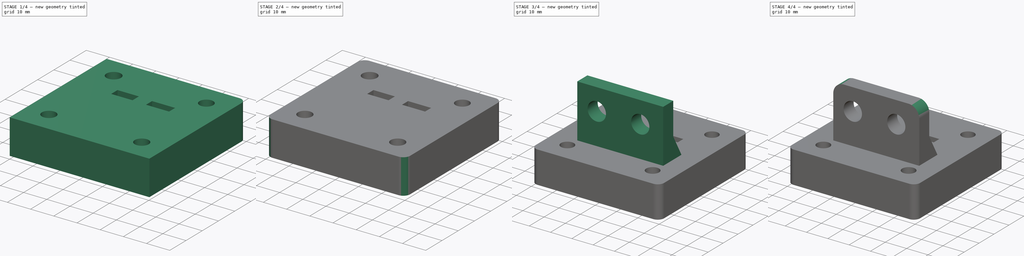
[diagram: build sequence overview — one tinted view per stage of 4, left to right]
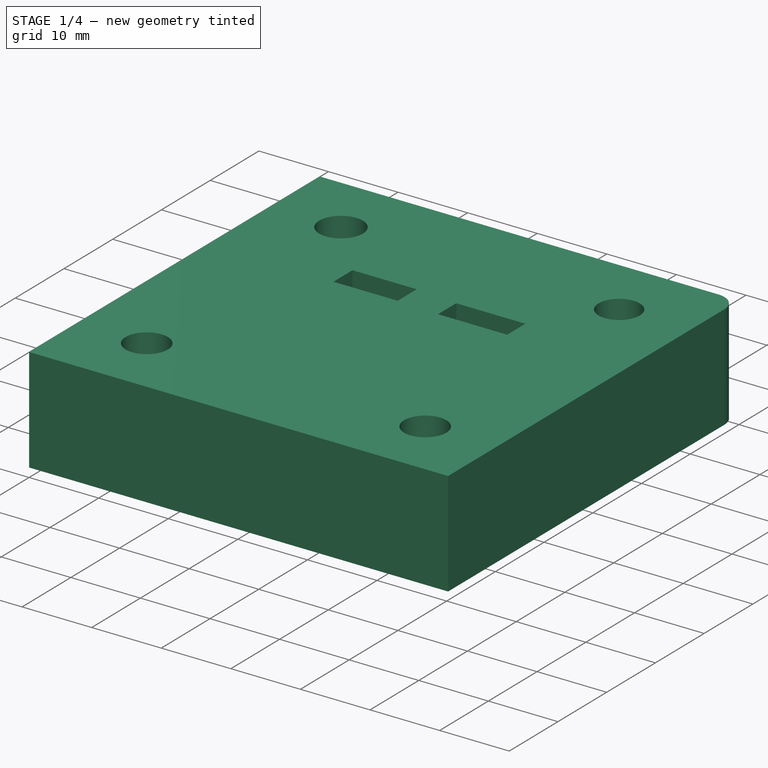
[diagram: stage 1 of 4 — iso view after this stage's code; geometry added in this stage tinted green]
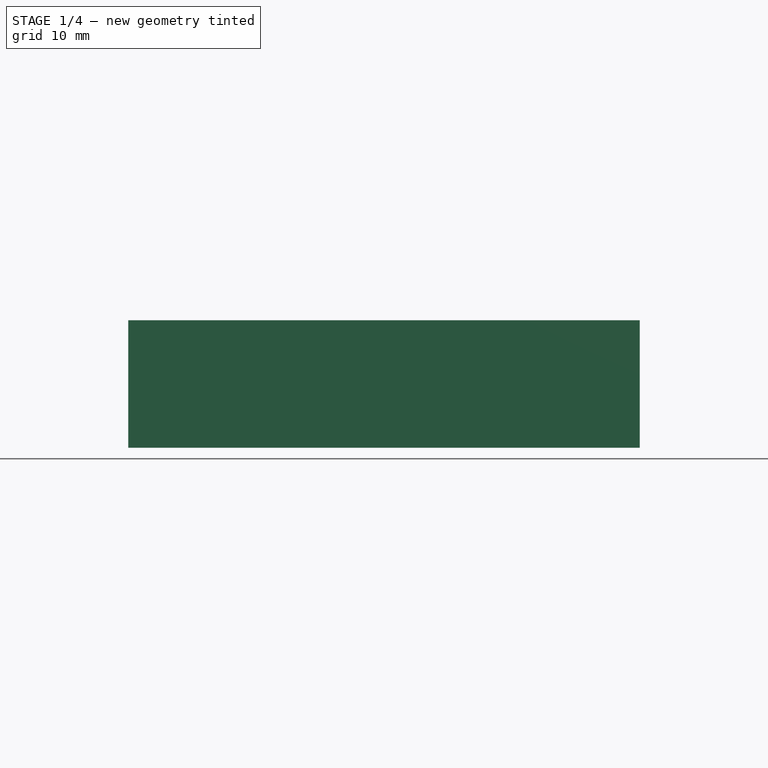
[diagram: stage 1 of 4 — front view after this stage's code; geometry added in this stage tinted green]
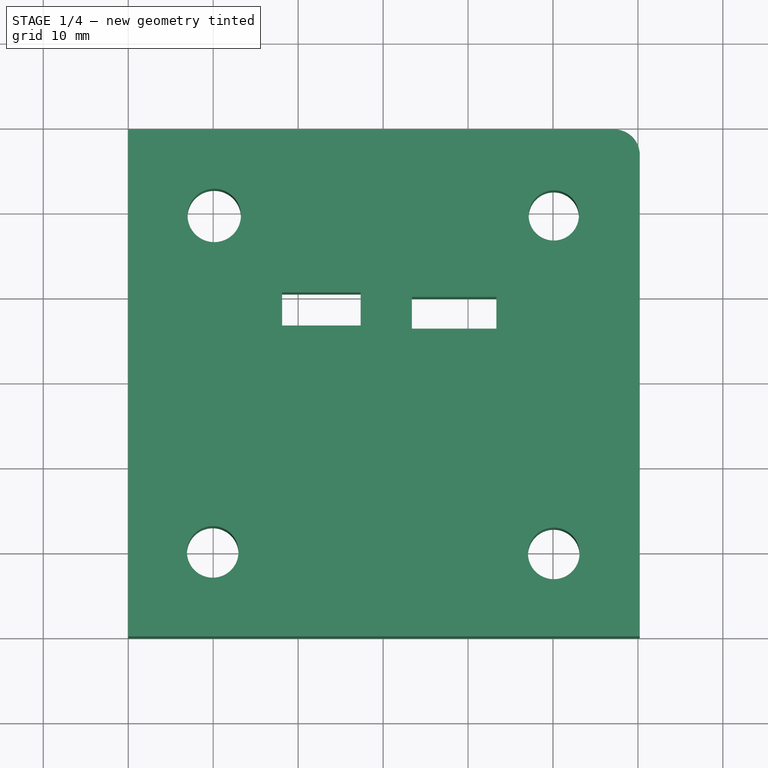
[diagram: stage 1 of 4 — top view after this stage's code; geometry added in this stage tinted green]
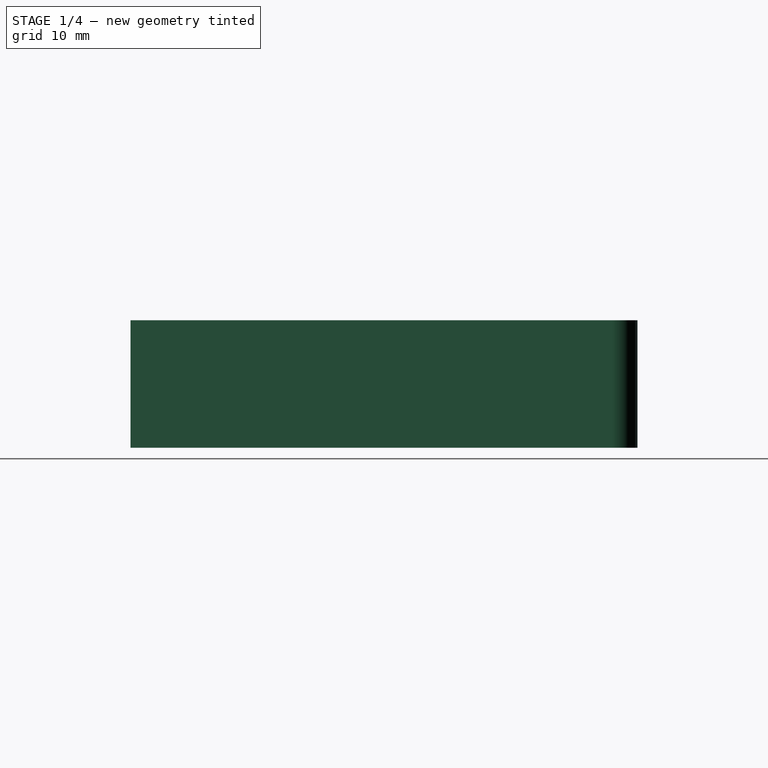
[diagram: stage 1 of 4 — right view after this stage's code; geometry added in this stage tinted green]
FCSTD DOCUMENT  (FreeCAD 0.16R6712 (Git))
Label: Perfil - Cara 1
License: All rights reserved
LicenseURL: http://en.wikipedia.org/wiki/All_rights_reserved
objects: PartDesign::Fillet×6, Sketcher::SketchObject×5, PartDesign::Pad×2, PartDesign::Pocket×2
note: 19 computed .brp shape members not serialized (recipe doc carries the construction recipe); baked Part::Feature solids carry a one-line shape summary decoded from their .brp

FEATURE [Sketcher::SketchObject] Sketch
  sketch-geometry (16):
    g0: LineSegment StartX=0 StartY=0 StartZ=0 EndX=60.2145 EndY=0 EndZ=0
    g1: LineSegment StartX=60.2145 StartY=0 StartZ=0 EndX=60.2145 EndY=59.6816 EndZ=0
    g2: LineSegment StartX=60.2145 StartY=59.6816 StartZ=0 EndX=0 EndY=59.6816 EndZ=0
    g3: LineSegment StartX=0 StartY=59.6816 StartZ=0 EndX=0 EndY=0 EndZ=0
    g4: Circle CenterX=10.1246 CenterY=49.557 CenterZ=0 NormalX=0 NormalY=0 NormalZ=1 Radius=3.14249
    g5: Circle CenterX=50.0899 CenterY=49.557 CenterZ=0 NormalX=0 NormalY=0 NormalZ=1 Radius=2.95623
    g6: Circle CenterX=9.94694 CenterY=9.94693 CenterZ=0 NormalX=0 NormalY=0 NormalZ=1 Radius=3.03523
    g7: Circle CenterX=50.0899 CenterY=9.76931 CenterZ=0 NormalX=0 NormalY=0 NormalZ=1 Radius=3.03523
    g8: LineSegment StartX=18.1176 StartY=40.4982 StartZ=0 EndX=27.3541 EndY=40.4982 EndZ=0
    g9: LineSegment StartX=27.3541 StartY=40.4982 StartZ=0 EndX=27.3541 EndY=36.5905 EndZ=0
    g10: LineSegment StartX=27.3541 StartY=36.5905 StartZ=0 EndX=18.1176 EndY=36.5905 EndZ=0
    g11: LineSegment StartX=18.1176 StartY=36.5905 StartZ=0 EndX=18.1176 EndY=40.4982 EndZ=0
    g12: LineSegment StartX=43.3402 StartY=39.9654 StartZ=0 EndX=33.3933 EndY=39.9654 EndZ=0
    g13: LineSegment StartX=33.3933 StartY=39.9654 StartZ=0 EndX=33.3933 EndY=36.2353 EndZ=0
    g14: LineSegment StartX=33.3933 StartY=36.2353 StartZ=0 EndX=43.3402 EndY=36.2353 EndZ=0
    g15: LineSegment StartX=43.3402 StartY=36.2353 StartZ=0 EndX=43.3402 EndY=39.9654 EndZ=0
  constraints (24):
    c: Coincident(g0,g1)
    c: Coincident(g1,g2)
    c: Coincident(g2,g3)
    c: Coincident(g3,g0)
    c: Horizontal(g0)
    c: Horizontal(g2)
    c: Vertical(g1)
    c: Vertical(g3)
    c: Coincident(g8,g9)
    c: Coincident(g9,g10)
    c: Coincident(g10,g11)
    c: Coincident(g11,g8)
    c: Horizontal(g8)
    c: Horizontal(g10)
    c: Vertical(g9)
    c: Vertical(g11)
    c: Coincident(g12,g13)
    c: Coincident(g13,g14)
    c: Coincident(g14,g15)
    c: Coincident(g15,g12)
    c: Horizontal(g12)
    c: Horizontal(g14)
    c: Vertical(g13)
    c: Vertical(g15)
FEATURE [PartDesign::Pad] Pad
  Length = 15
  Length2 = 100
  Sketch = -> Sketch
  Type = 0
FEATURE [PartDesign::Fillet] Fillet002
  Base = -> Pad [Edge5]
  Radius = 3
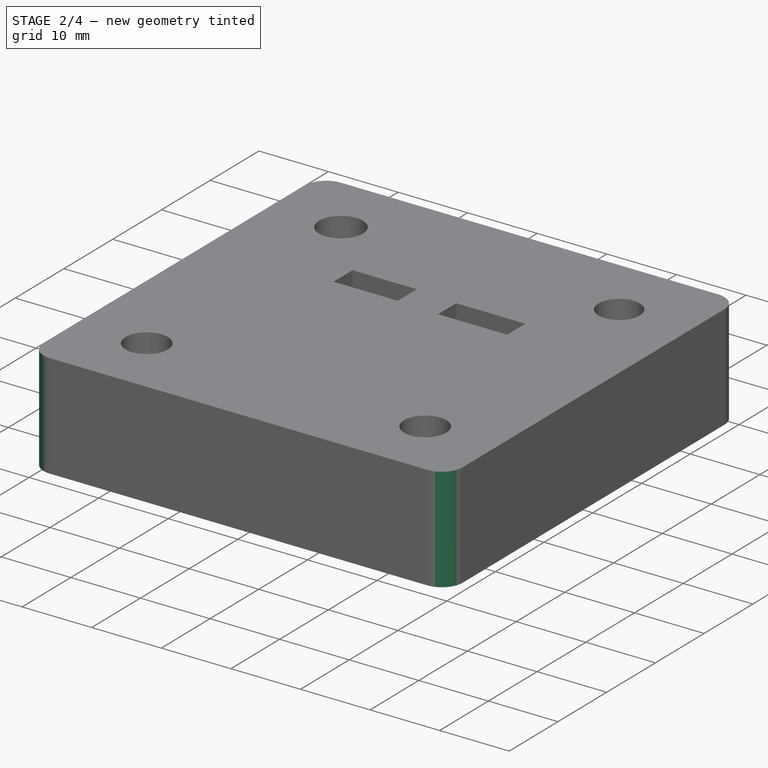
[diagram: stage 2 of 4 — iso view after this stage's code; geometry added in this stage tinted green]
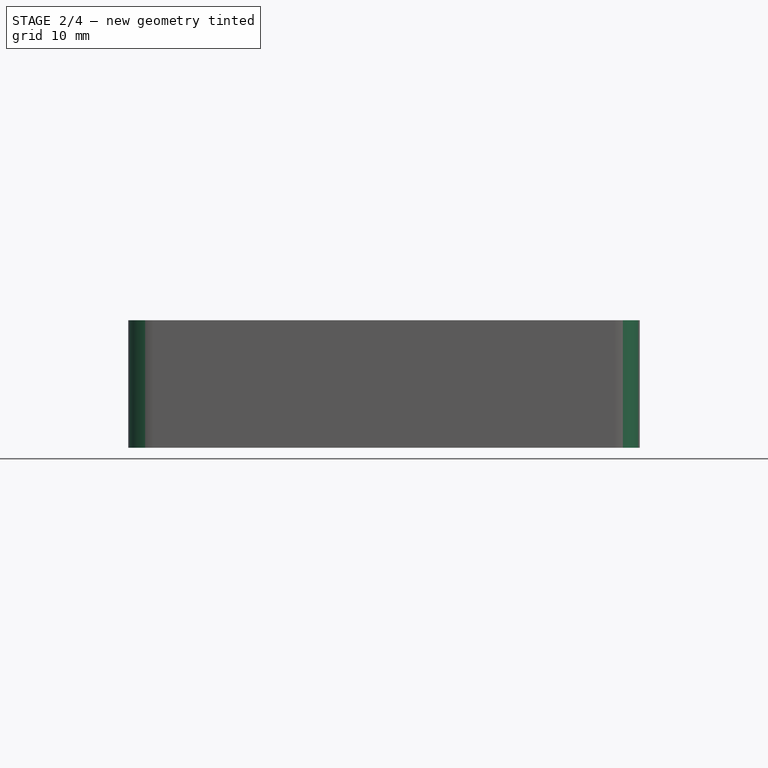
[diagram: stage 2 of 4 — front view after this stage's code; geometry added in this stage tinted green]
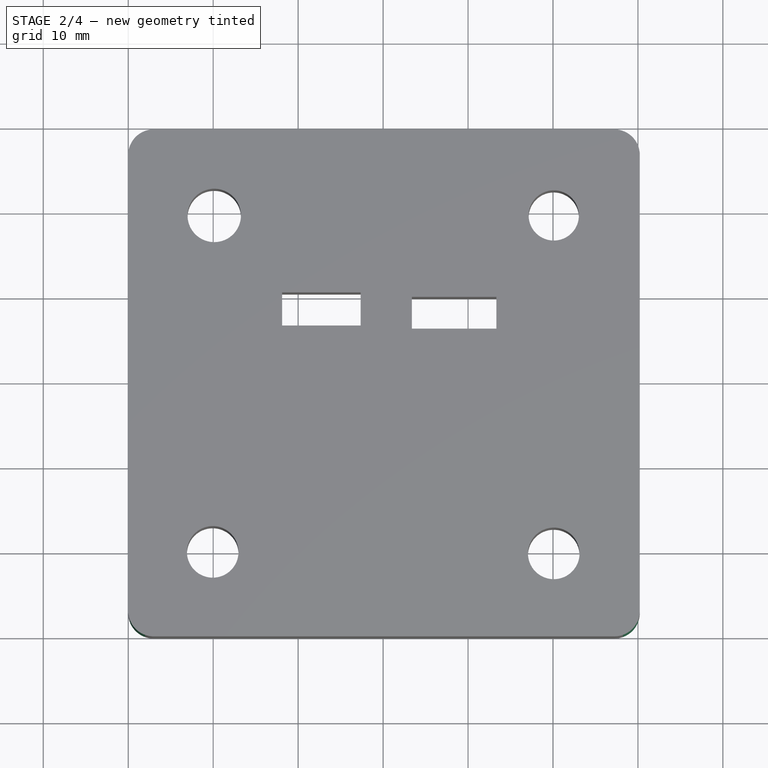
[diagram: stage 2 of 4 — top view after this stage's code; geometry added in this stage tinted green]
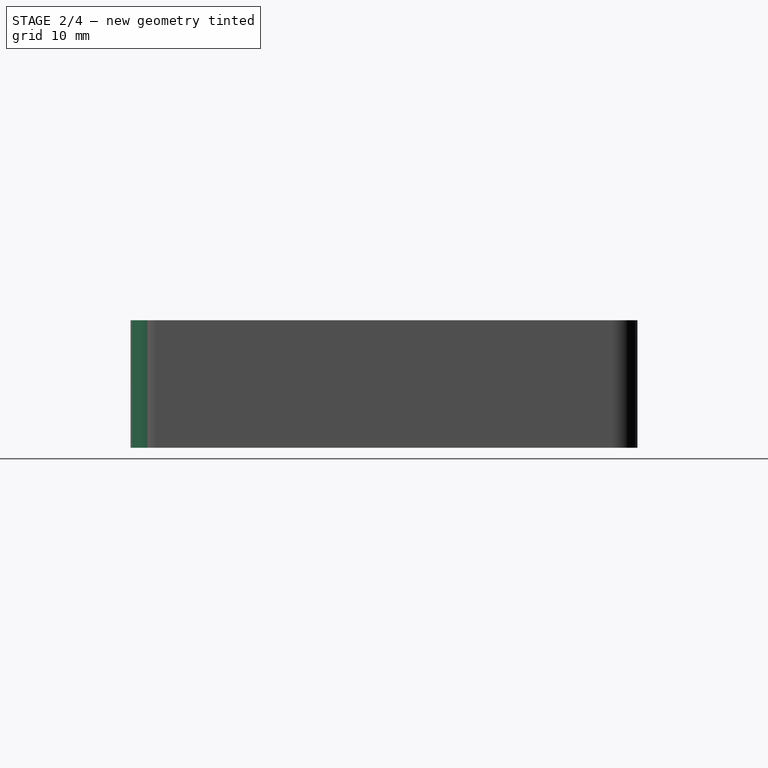
[diagram: stage 2 of 4 — right view after this stage's code; geometry added in this stage tinted green]
FEATURE [PartDesign::Fillet] Fillet003
  Base = -> Fillet002 [Edge3]
  Radius = 3
FEATURE [PartDesign::Fillet] Fillet004
  Base = -> Fillet003 [Edge41]
  Radius = 3
FEATURE [PartDesign::Fillet] Fillet005
  Base = -> Fillet004 [Edge27]
  Radius = 3
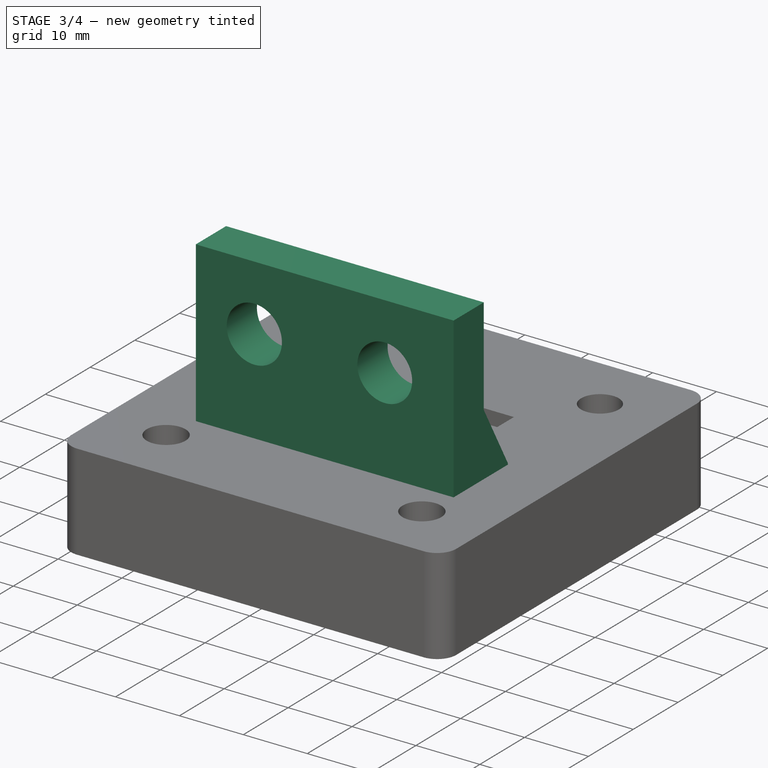
[diagram: stage 3 of 4 — iso view after this stage's code; geometry added in this stage tinted green]
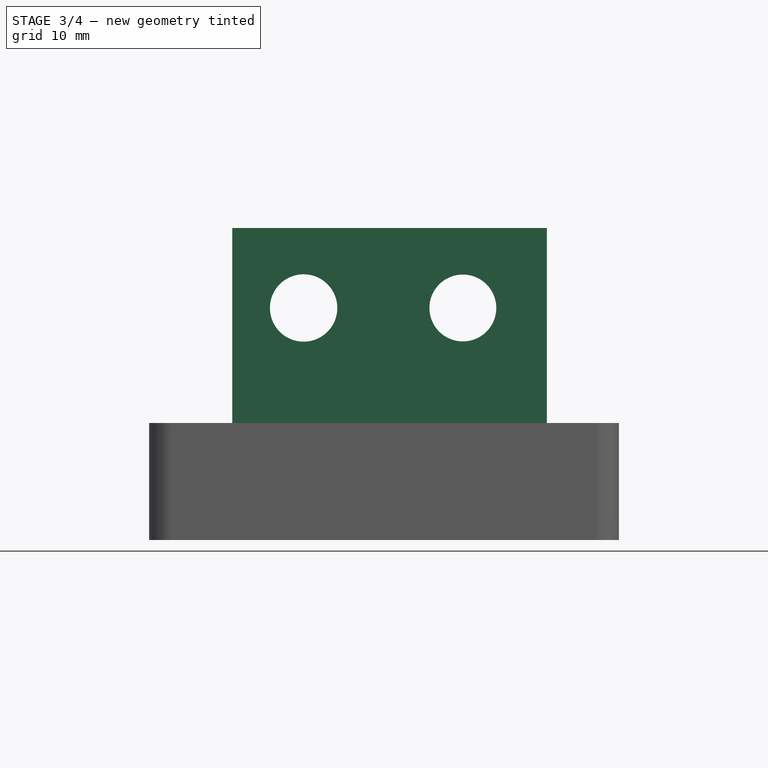
[diagram: stage 3 of 4 — front view after this stage's code; geometry added in this stage tinted green]
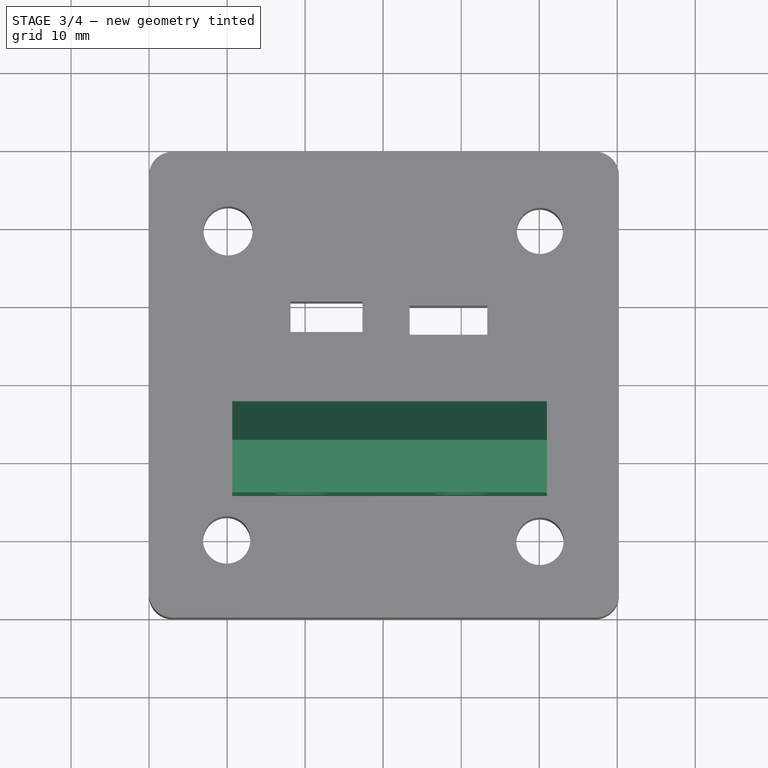
[diagram: stage 3 of 4 — top view after this stage's code; geometry added in this stage tinted green]
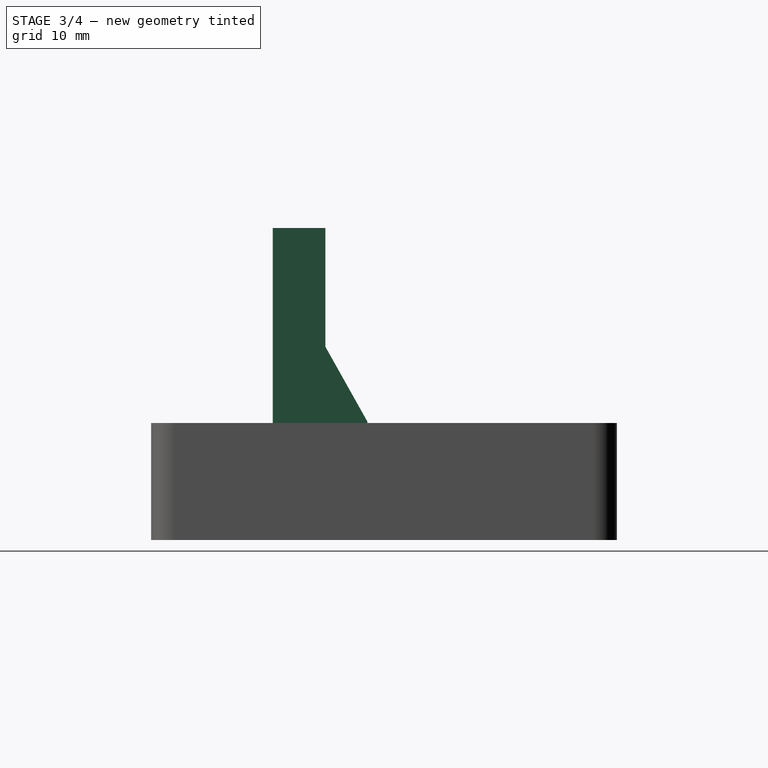
[diagram: stage 3 of 4 — right view after this stage's code; geometry added in this stage tinted green]
FEATURE [Sketcher::SketchObject] Sketch001
  sketch-geometry (4):
    g0: LineSegment StartX=10.6618 StartY=15.5766 StartZ=0 EndX=50.9824 EndY=15.5766 EndZ=0
    g1: LineSegment StartX=50.9824 StartY=15.5766 StartZ=0 EndX=50.9824 EndY=27.7093 EndZ=0
    g2: LineSegment StartX=50.9824 StartY=27.7093 StartZ=0 EndX=10.6618 EndY=27.7093 EndZ=0
    g3: LineSegment StartX=10.6618 StartY=27.7093 StartZ=0 EndX=10.6618 EndY=15.5766 EndZ=0
  constraints (8):
    c: Coincident(g0,g1)
    c: Coincident(g1,g2)
    c: Coincident(g2,g3)
    c: Coincident(g3,g0)
    c: Horizontal(g0)
    c: Horizontal(g2)
    c: Vertical(g1)
    c: Vertical(g3)
FEATURE [PartDesign::Pad] Pad001
  Length = 40
  Length2 = 100
  Sketch = -> Sketch001
  Type = 0
FEATURE [Sketcher::SketchObject] Sketch002
  Placement = pos=(0,15.5766,0) rot=(1,0,0;1.5708rad)
  Support = -> Pad001 [Face1]
  sketch-geometry (2):
    g0: Circle CenterX=19.8042 CenterY=29.7427 CenterZ=0 NormalX=0 NormalY=0 NormalZ=1 Radius=4.31762
    g1: Circle CenterX=40.2137 CenterY=29.7427 CenterZ=0 NormalX=0 NormalY=0 NormalZ=1 Radius=4.28441
FEATURE [PartDesign::Pocket] Pocket
  Length = 20
  Sketch = -> Sketch002
  Type = 0
FEATURE [Sketcher::SketchObject] Sketch003
  Placement = pos=(50.9824,0,0) rot=(0.57735,0.57735,0.57735;2.0944rad)
  Support = -> Pocket [Face5]
  sketch-geometry (2):
    g0: LineSegment StartX=27.7986 StartY=29.4213 StartZ=0 EndX=27.7986 EndY=14.4921 EndZ=0
    g1: LineSegment StartX=40.2711 StartY=14.4921 StartZ=0 EndX=27.7986 EndY=14.4921 EndZ=0
  constraints (3):
    c: Vertical(g0)
    c: Coincident(g1,g0)
    c: Horizontal(g1)
FEATURE [Sketcher::SketchObject] Sketch004
  Placement = pos=(50.9824,0,0) rot=(0.57735,0.57735,0.57735;2.0944rad)
  Support = -> Pocket [Face5]
  sketch-geometry (4):
    g0: LineSegment StartX=28.077 StartY=14.5368 StartZ=0 EndX=22.3236 EndY=24.7851 EndZ=0
    g1: LineSegment StartX=22.3236 StartY=24.7851 StartZ=0 EndX=22.3236 EndY=47.2594 EndZ=0
    g2: LineSegment StartX=22.3236 StartY=47.2594 StartZ=0 EndX=55.7654 EndY=45.2816 EndZ=0
    g3: LineSegment StartX=55.7654 StartY=45.2816 StartZ=0 EndX=28.077 EndY=14.5368 EndZ=0
  constraints (5):
    c: Coincident(g1,g0)
    c: Vertical(g1)
    c: Coincident(g2,g1)
    c: Coincident(g3,g2)
    c: Coincident(g3,g0)
FEATURE [PartDesign::Pocket] Pocket001
  Length = 50
  Sketch = -> Sketch004
  Type = 0
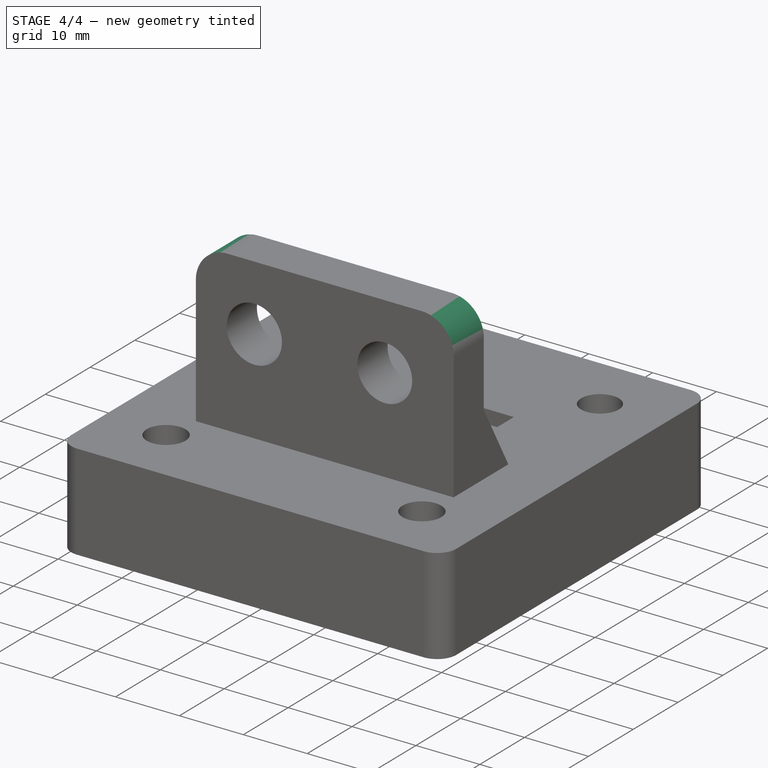
[diagram: stage 4 of 4 — iso view after this stage's code; geometry added in this stage tinted green]
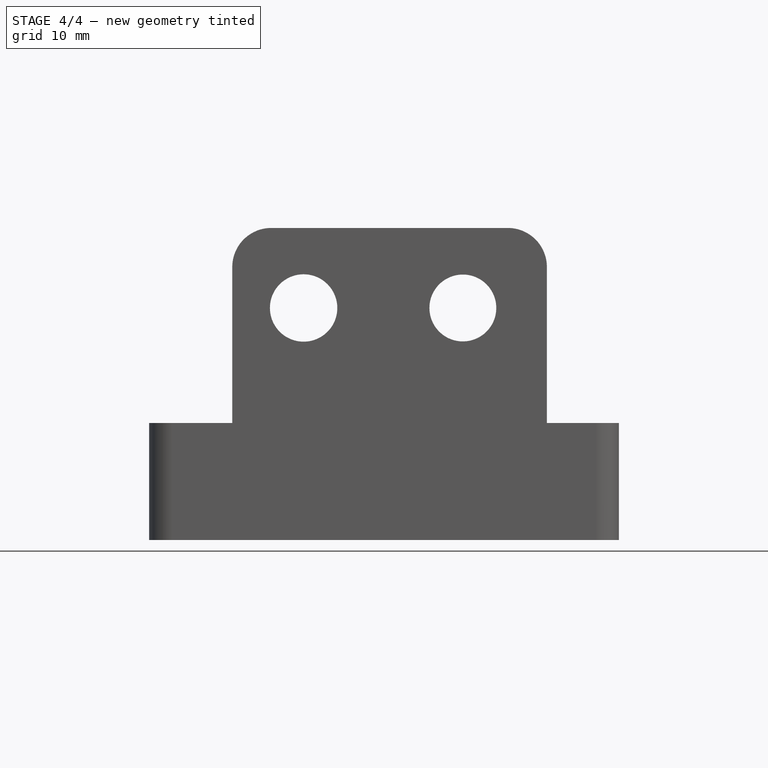
[diagram: stage 4 of 4 — front view after this stage's code; geometry added in this stage tinted green]
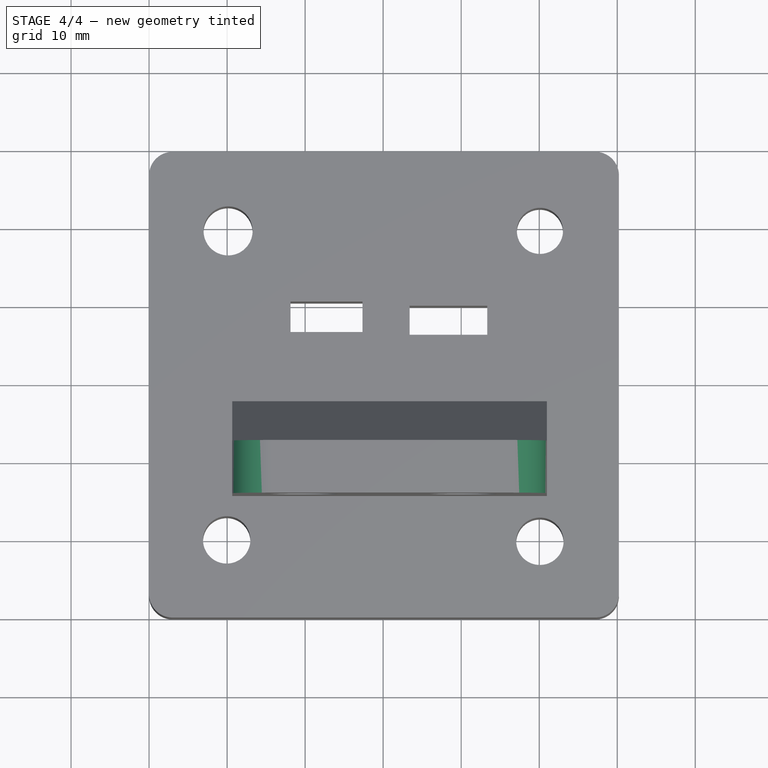
[diagram: stage 4 of 4 — top view after this stage's code; geometry added in this stage tinted green]
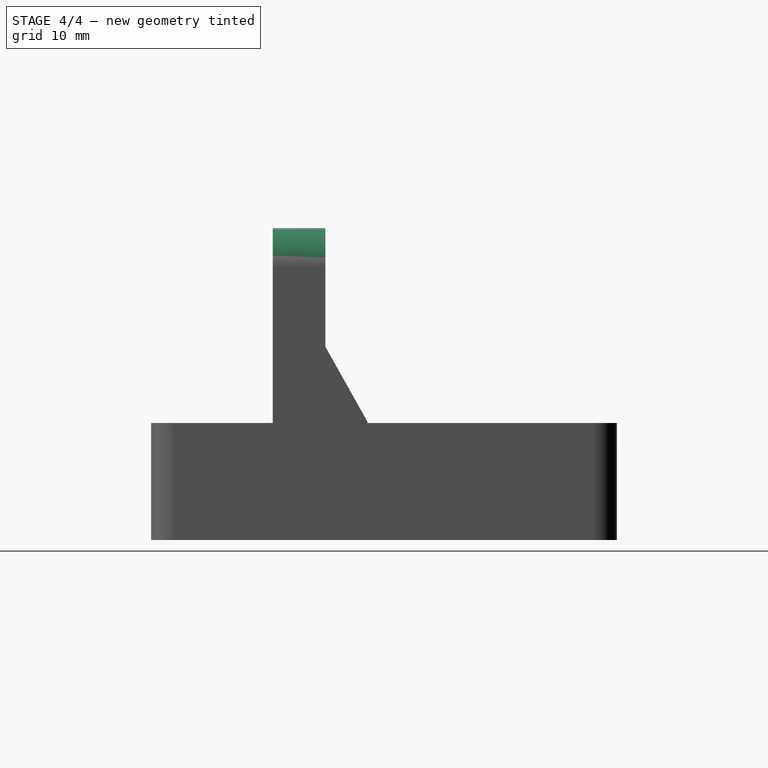
[diagram: stage 4 of 4 — right view after this stage's code; geometry added in this stage tinted green]
FEATURE [PartDesign::Fillet] Fillet
  Base = -> Pocket001 [Edge14]
  Radius = 5
FEATURE [PartDesign::Fillet] Fillet001
  Base = -> Fillet [Edge9]
  Radius = 5
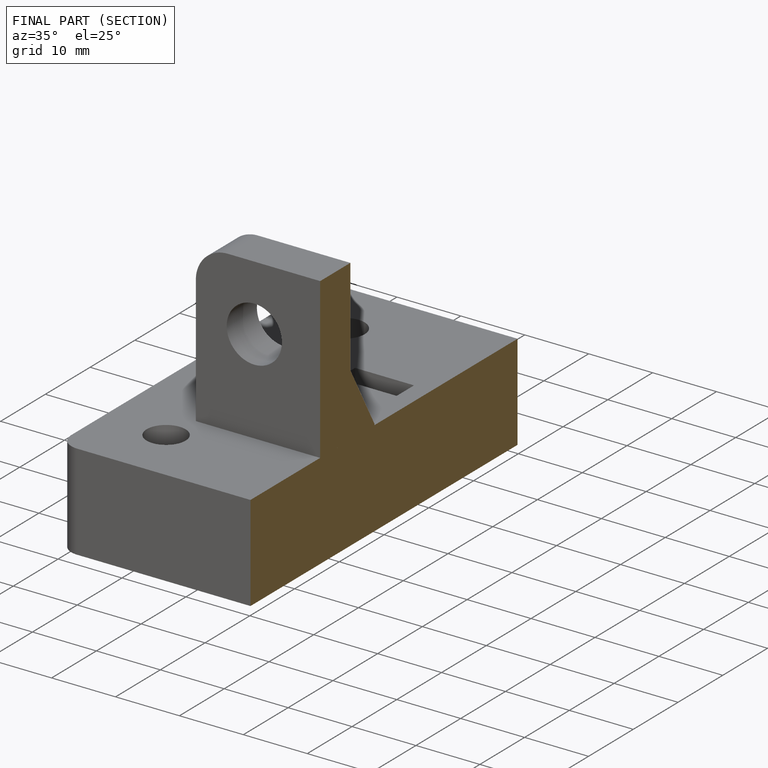
[diagram: finished part — half-section view (interior)]
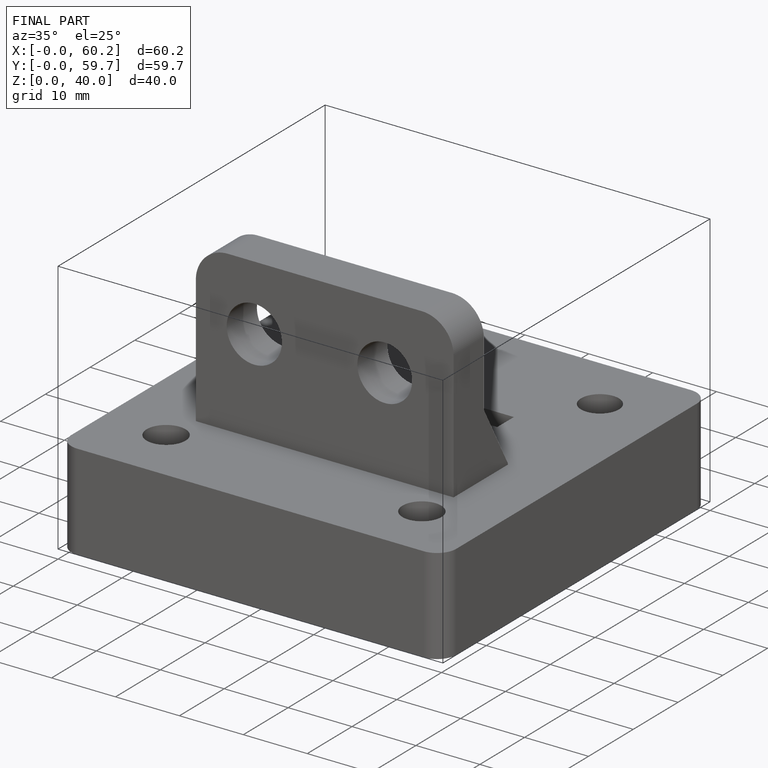
[diagram: finished part — iso view with bounding-box wireframe]
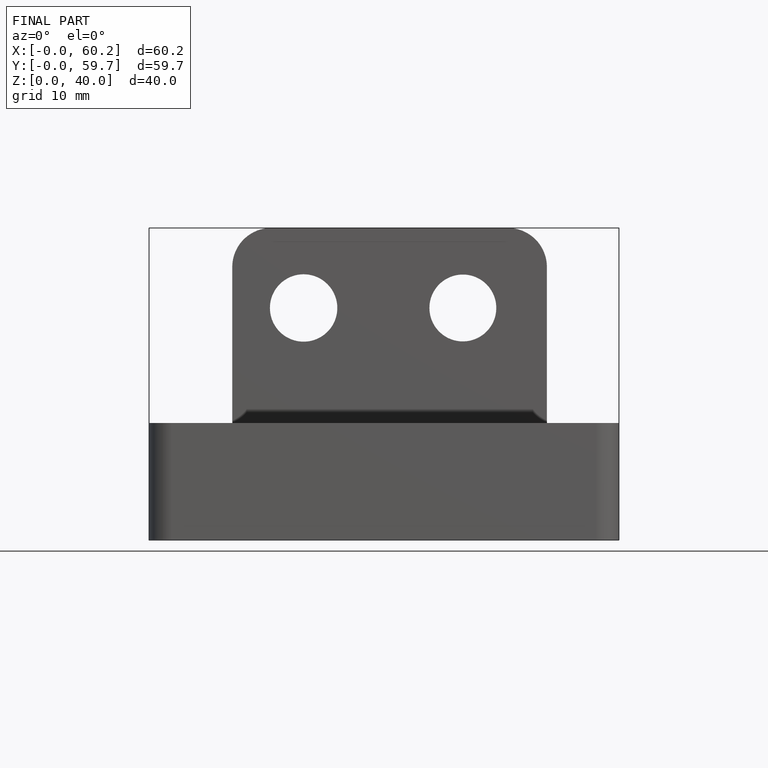
[diagram: finished part — front view with bounding-box wireframe]
